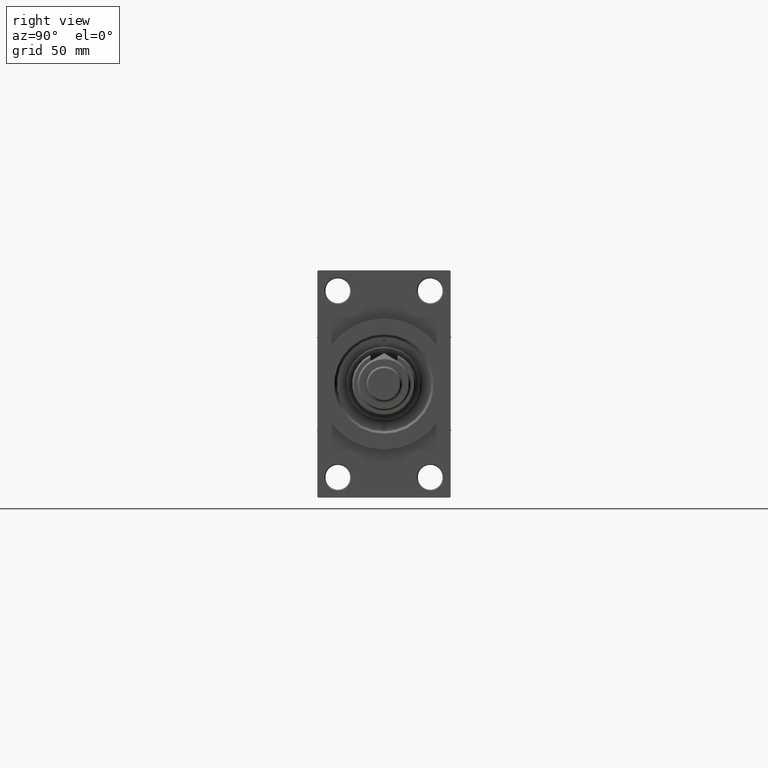
[diagram: clean part render]
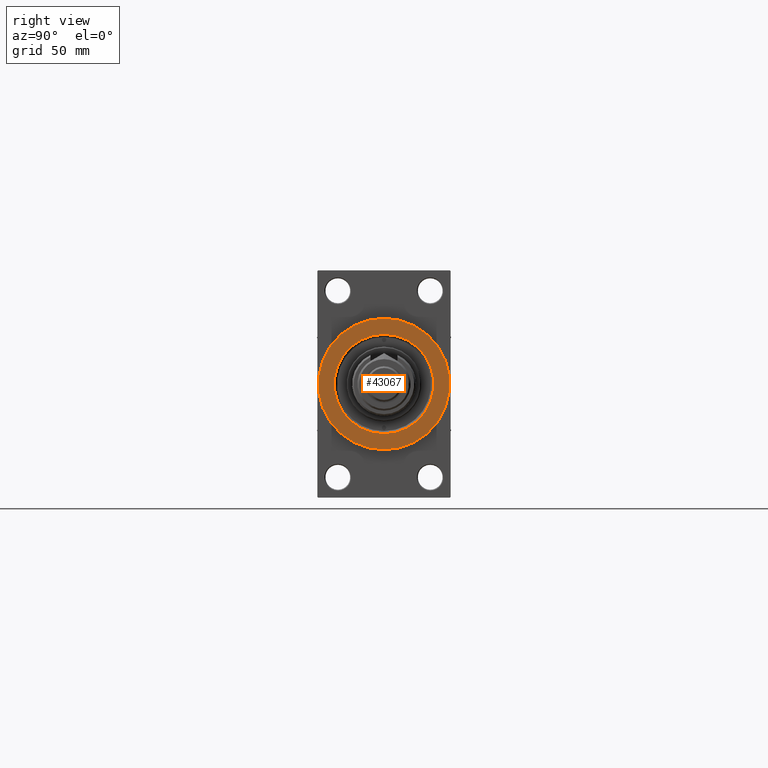
[diagram: same view with one face highlighted and labeled with its STEP entity id]
A machine part, right view. The second image highlights one B-rep face of the part: STEP entity #43067.
In plain terms, the highlighted planar face has unit normal (1, 0, 0).
Its self-contained STEP definition (entity closure, byte-faithful):
#339 = VERTEX_POINT ( 'NONE', #20792 ) ;
#1371 = DIRECTION ( 'NONE',  ( 0.000000000000000000, 0.000000000000000000, -1.000000000000000000 ) ) ;
#2041 = ORIENTED_EDGE ( 'NONE', *, *, #10611, .T. ) ;
#2085 = CARTESIAN_POINT ( 'NONE',  ( 259.0000000000000000, 0.000000000000000000, 0.000000000000000000 ) ) ;
#2444 = AXIS2_PLACEMENT_3D ( 'NONE', #2085, #6143, #50024 ) ;
#3762 = AXIS2_PLACEMENT_3D ( 'NONE', #36181, #16849, #1371 ) ;
#3926 = EDGE_LOOP ( 'NONE', ( #11228, #11089 ) ) ;
#6143 = DIRECTION ( 'NONE',  ( -1.000000000000000000, -0.000000000000000000, -0.000000000000000000 ) ) ;
#7248 = EDGE_LOOP ( 'NONE', ( #2041, #40355 ) ) ;
#7593 = AXIS2_PLACEMENT_3D ( 'NONE', #38011, #18678, #15134 ) ;
#8406 = CIRCLE ( 'NONE', #7593, 37.00000000000000000 ) ;
#9655 = DIRECTION ( 'NONE',  ( 0.000000000000000000, 0.000000000000000000, -1.000000000000000000 ) ) ;
#9687 = VERTEX_POINT ( 'NONE', #29873 ) ;
#9974 = AXIS2_PLACEMENT_3D ( 'NONE', #32547, #16789, #9655 ) ;
#10611 = EDGE_CURVE ( 'NONE', #28676, #37782, #8406, .T. ) ;
#11089 = ORIENTED_EDGE ( 'NONE', *, *, #17818, .T. ) ;
#11228 = ORIENTED_EDGE ( 'NONE', *, *, #29939, .T. ) ;
#12721 = CIRCLE ( 'NONE', #38690, 28.00000000000005329 ) ;
#15091 = CIRCLE ( 'NONE', #3762, 37.00000000000000000 ) ;
#15134 = DIRECTION ( 'NONE',  ( 0.000000000000000000, 0.000000000000000000, -1.000000000000000000 ) ) ;
#16789 = DIRECTION ( 'NONE',  ( 1.000000000000000000, 0.000000000000000000, 0.000000000000000000 ) ) ;
#16849 = DIRECTION ( 'NONE',  ( 1.000000000000000000, 0.000000000000000000, 0.000000000000000000 ) ) ;
#17033 = PLANE ( 'NONE',  #9974 ) ;
#17818 = EDGE_CURVE ( 'NONE', #339, #9687, #12721, .T. ) ;
#18678 = DIRECTION ( 'NONE',  ( 1.000000000000000000, 0.000000000000000000, 0.000000000000000000 ) ) ;
#19090 = DIRECTION ( 'NONE',  ( -1.000000000000000000, -0.000000000000000000, -0.000000000000000000 ) ) ;
#20599 = FACE_OUTER_BOUND ( 'NONE', #7248, .T. ) ;
#20792 = CARTESIAN_POINT ( 'NONE',  ( 259.0000000000000000, 3.429011037612595587E-15, 28.00000000000005329 ) ) ;
#21013 = EDGE_CURVE ( 'NONE', #37782, #28676, #15091, .T. ) ;
#21443 = CARTESIAN_POINT ( 'NONE',  ( 259.0000000000000000, 4.531193156845206793E-15, -37.00000000000000000 ) ) ;
#23176 = CARTESIAN_POINT ( 'NONE',  ( 259.0000000000000000, 0.000000000000000000, 0.000000000000000000 ) ) ;
#24924 = FACE_BOUND ( 'NONE', #3926, .T. ) ;
#28676 = VERTEX_POINT ( 'NONE', #33690 ) ;
#29873 = CARTESIAN_POINT ( 'NONE',  ( 259.0000000000000000, 0.000000000000000000, -28.00000000000005329 ) ) ;
#29939 = EDGE_CURVE ( 'NONE', #9687, #339, #38875, .T. ) ;
#32547 = CARTESIAN_POINT ( 'NONE',  ( 259.0000000000000000, 0.000000000000000000, 0.000000000000000000 ) ) ;
#33690 = CARTESIAN_POINT ( 'NONE',  ( 259.0000000000000000, 0.000000000000000000, 37.00000000000000000 ) ) ;
#34610 = DIRECTION ( 'NONE',  ( 0.000000000000000000, 0.000000000000000000, -1.000000000000000000 ) ) ;
#36181 = CARTESIAN_POINT ( 'NONE',  ( 259.0000000000000000, 0.000000000000000000, 0.000000000000000000 ) ) ;
#37782 = VERTEX_POINT ( 'NONE', #21443 ) ;
#38011 = CARTESIAN_POINT ( 'NONE',  ( 259.0000000000000000, 0.000000000000000000, 0.000000000000000000 ) ) ;
#38690 = AXIS2_PLACEMENT_3D ( 'NONE', #23176, #19090, #34610 ) ;
#38875 = CIRCLE ( 'NONE', #2444, 28.00000000000005329 ) ;
#40355 = ORIENTED_EDGE ( 'NONE', *, *, #21013, .T. ) ;
#43067 = ADVANCED_FACE ( 'NONE', ( #24924, #20599 ), #17033, .T. ) ;
#50024 = DIRECTION ( 'NONE',  ( 0.000000000000000000, 0.000000000000000000, -1.000000000000000000 ) ) ;